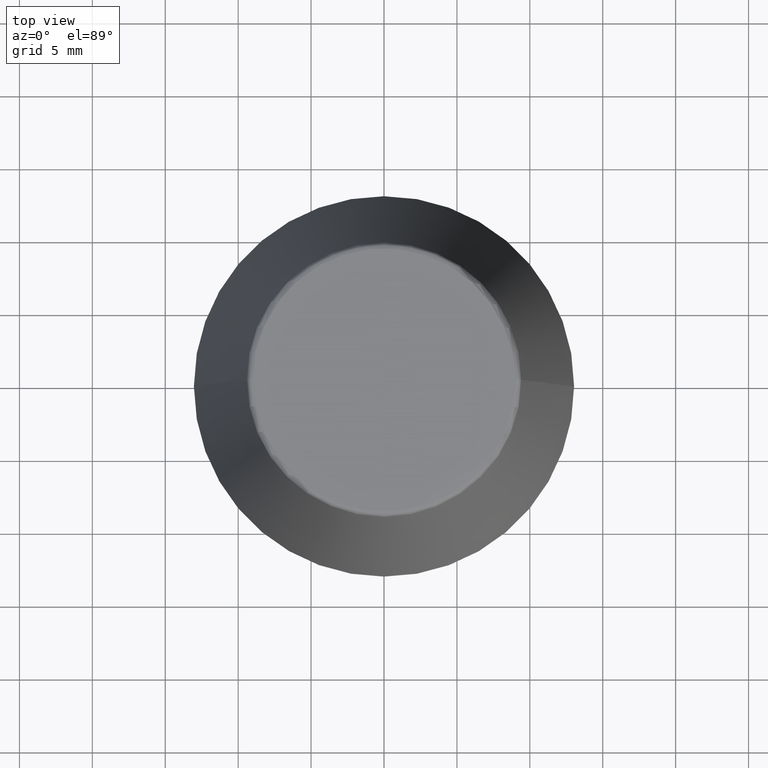
[diagram: clean part render]
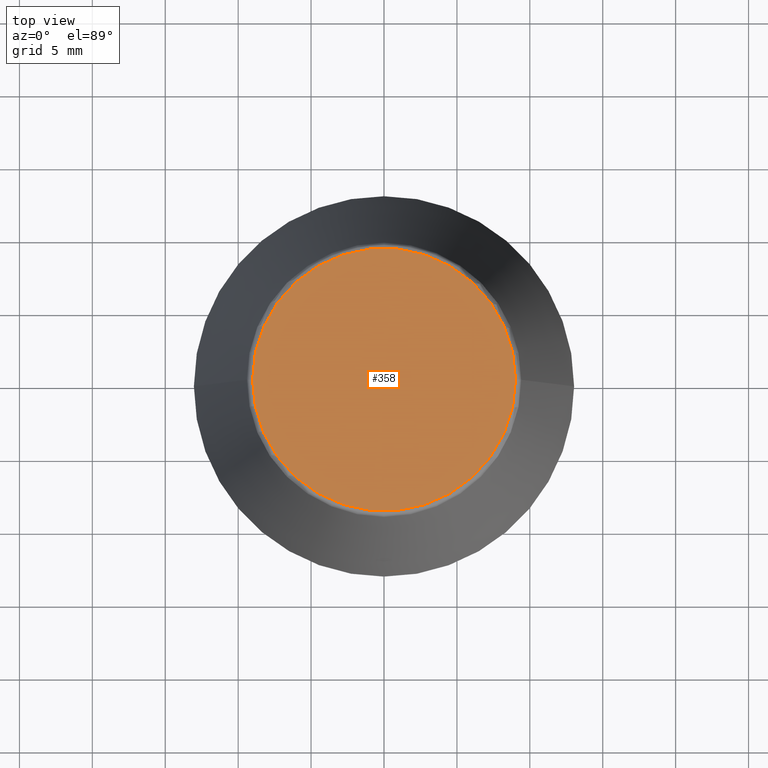
[diagram: same view with one face highlighted and labeled with its STEP entity id]
A machine part, top view. The second image highlights one B-rep face of the part: STEP entity #358.
In plain terms, the highlighted planar face has unit normal (0, 0, -1).
Its self-contained STEP definition (entity closure, byte-faithful):
#1 = DIRECTION ( 'NONE',  ( 1.000000000000000000, 0.0000000000000000000, 0.0000000000000000000 ) ) ;
#16 = ORIENTED_EDGE ( 'NONE', *, *, #201, .T. ) ;
#57 = CIRCLE ( 'NONE', #292, 9.012603057622234500 ) ;
#59 = ORIENTED_EDGE ( 'NONE', *, *, #320, .T. ) ;
#84 = DIRECTION ( 'NONE',  ( 0.0000000000000000000, 0.0000000000000000000, -1.000000000000000000 ) ) ;
#86 = EDGE_LOOP ( 'NONE', ( #59, #16 ) ) ;
#135 = VERTEX_POINT ( 'NONE', #335 ) ;
#153 = CARTESIAN_POINT ( 'NONE',  ( 9.012603057622234500, 0.0000000000000000000, 34.00000000000000000 ) ) ;
#171 = VERTEX_POINT ( 'NONE', #153 ) ;
#180 = DIRECTION ( 'NONE',  ( -0.0000000000000000000, -0.0000000000000000000, 1.000000000000000000 ) ) ;
#185 = CARTESIAN_POINT ( 'NONE',  ( 0.0000000000000000000, 0.0000000000000000000, 34.00000000000000000 ) ) ;
#194 = DIRECTION ( 'NONE',  ( -1.000000000000000000, 0.0000000000000000000, -0.0000000000000000000 ) ) ;
#201 = EDGE_CURVE ( 'NONE', #135, #171, #357, .T. ) ;
#211 = AXIS2_PLACEMENT_3D ( 'NONE', #337, #84, #194 ) ;
#212 = PLANE ( 'NONE',  #211 ) ;
#213 = AXIS2_PLACEMENT_3D ( 'NONE', #271, #180, #1 ) ;
#251 = DIRECTION ( 'NONE',  ( -0.0000000000000000000, -0.0000000000000000000, 1.000000000000000000 ) ) ;
#264 = FACE_OUTER_BOUND ( 'NONE', #86, .T. ) ;
#271 = CARTESIAN_POINT ( 'NONE',  ( 0.0000000000000000000, 0.0000000000000000000, 34.00000000000000000 ) ) ;
#292 = AXIS2_PLACEMENT_3D ( 'NONE', #185, #251, #340 ) ;
#320 = EDGE_CURVE ( 'NONE', #171, #135, #57, .T. ) ;
#335 = CARTESIAN_POINT ( 'NONE',  ( -9.012603057622234500, 1.127980121063915600E-015, 34.00000000000000000 ) ) ;
#337 = CARTESIAN_POINT ( 'NONE',  ( 0.0000000000000000000, 9.012603057622234500, 34.00000000000000000 ) ) ;
#340 = DIRECTION ( 'NONE',  ( 1.000000000000000000, 0.0000000000000000000, 0.0000000000000000000 ) ) ;
#357 = CIRCLE ( 'NONE', #213, 9.012603057622234500 ) ;
#358 = ADVANCED_FACE ( 'NONE', ( #264 ), #212, .F. ) ;